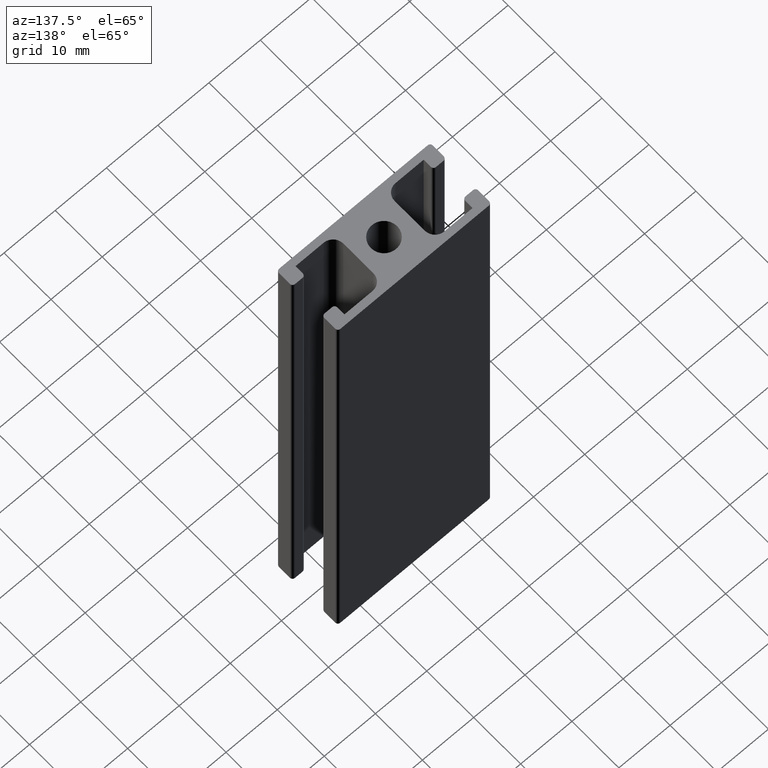
[diagram: clean part render]
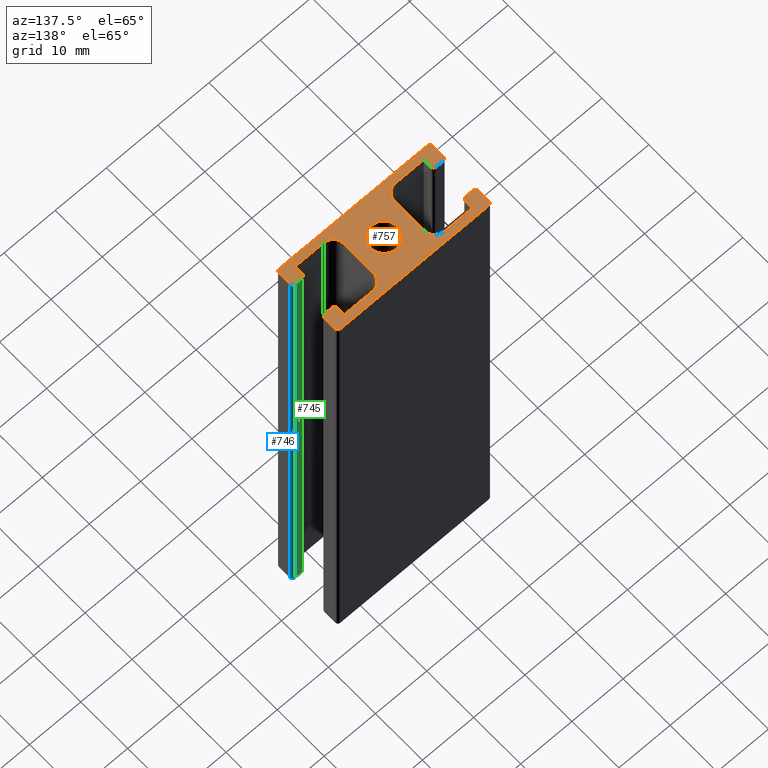
[diagram: same view with three faces highlighted in distinct colors, each labeled with its STEP entity id]
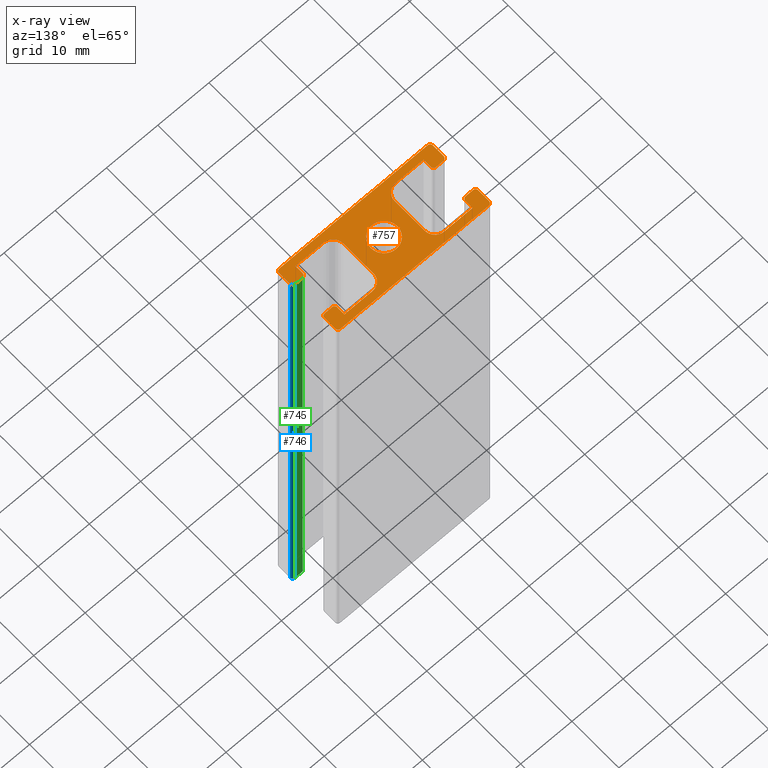
[diagram: x-ray of the same camera — body ghosted, the three highlighted faces saturated]
A machine part, auxiliary view with three faces highlighted in distinct colors.
The next image is the same camera in x-ray (body ghosted, the three faces saturated) — at least one of them is partly hidden behind the body in this view.
Their STEP definitions:

[orange] entity #757 — the highlighted planar face has unit normal (0, 0, 1).
#31=PLANE('',#824);
#39=LINE('',#1083,#115);
#43=LINE('',#1095,#119);
#46=LINE('',#1101,#122);
#50=LINE('',#1113,#126);
#56=LINE('',#1134,#132);
#60=LINE('',#1146,#136);
#63=LINE('',#1151,#139);
#65=LINE('',#1156,#141);
#69=LINE('',#1164,#145);
#73=LINE('',#1176,#149);
#79=LINE('',#1197,#155);
#83=LINE('',#1209,#159);
#86=LINE('',#1215,#162);
#90=LINE('',#1227,#166);
#95=LINE('',#1239,#171);
#96=LINE('',#1242,#172);
#99=LINE('',#1250,#175);
#100=LINE('',#1253,#176);
#101=LINE('',#1257,#177);
#102=LINE('',#1260,#178);
#115=VECTOR('',#860,6.400000000016);
#119=VECTOR('',#872,5.500000000008);
#122=VECTOR('',#877,1.55);
#126=VECTOR('',#889,1.5);
#132=VECTOR('',#909,1.5);
#136=VECTOR('',#921,1.55);
#139=VECTOR('',#926,5.500000000008);
#141=VECTOR('',#930,5.500000000008);
#145=VECTOR('',#936,1.55);
#149=VECTOR('',#948,1.5);
#155=VECTOR('',#968,1.5);
#159=VECTOR('',#980,1.55);
#162=VECTOR('',#985,5.500000000008);
#166=VECTOR('',#997,6.400000000016);
#171=VECTOR('',#1010,2.35000000000001);
#172=VECTOR('',#1013,2.35);
#175=VECTOR('',#1020,29.);
#176=VECTOR('',#1023,2.35000000000001);
#177=VECTOR('',#1026,29.);
#178=VECTOR('',#1029,2.34999999999999);
#190=FACE_BOUND('',#262,.T.);
#221=FACE_OUTER_BOUND('',#261,.T.);
#261=EDGE_LOOP('',(#605,#606,#607,#608,#609,#610,#611,#612,#613,#614,#615,
#616,#617,#618,#619,#620,#621,#622,#623,#624,#625,#626,#627,#628,#629,#630,
#631,#632,#633,#634,#635,#636,#637,#638,#639,#640));
#262=EDGE_LOOP('',(#641));
#273=CIRCLE('',#770,2.575);
#275=CIRCLE('',#773,1.999999999992);
#277=CIRCLE('',#777,1.999999999992);
#279=CIRCLE('',#782,0.5);
#281=CIRCLE('',#786,0.5);
#283=CIRCLE('',#789,0.499999999999998);
#285=CIRCLE('',#793,0.5);
#287=CIRCLE('',#800,0.5);
#289=CIRCLE('',#804,0.5);
#291=CIRCLE('',#807,0.5);
#293=CIRCLE('',#811,0.5);
#295=CIRCLE('',#816,1.999999999992);
#297=CIRCLE('',#820,1.999999999992);
#299=CIRCLE('',#825,0.499999999999994);
#300=CIRCLE('',#826,0.500000000000003);
#301=CIRCLE('',#827,0.500000000000003);
#302=CIRCLE('',#828,0.500000000000003);
#307=VERTEX_POINT('',#1068);
#309=VERTEX_POINT('',#1073);
#310=VERTEX_POINT('',#1074);
#313=VERTEX_POINT('',#1082);
#315=VERTEX_POINT('',#1088);
#317=VERTEX_POINT('',#1094);
#319=VERTEX_POINT('',#1100);
#321=VERTEX_POINT('',#1106);
#323=VERTEX_POINT('',#1112);
#325=VERTEX_POINT('',#1118);
#327=VERTEX_POINT('',#1124);
#328=VERTEX_POINT('',#1125);
#331=VERTEX_POINT('',#1133);
#333=VERTEX_POINT('',#1139);
#335=VERTEX_POINT('',#1145);
#337=VERTEX_POINT('',#1154);
#338=VERTEX_POINT('',#1155);
#341=VERTEX_POINT('',#1163);
#343=VERTEX_POINT('',#1169);
#345=VERTEX_POINT('',#1175);
#347=VERTEX_POINT('',#1181);
#349=VERTEX_POINT('',#1187);
#350=VERTEX_POINT('',#1188);
#353=VERTEX_POINT('',#1196);
#355=VERTEX_POINT('',#1202);
#357=VERTEX_POINT('',#1208);
#359=VERTEX_POINT('',#1214);
#361=VERTEX_POINT('',#1220);
#363=VERTEX_POINT('',#1226);
#366=VERTEX_POINT('',#1237);
#367=VERTEX_POINT('',#1241);
#369=VERTEX_POINT('',#1247);
#370=VERTEX_POINT('',#1249);
#371=VERTEX_POINT('',#1252);
#372=VERTEX_POINT('',#1254);
#373=VERTEX_POINT('',#1256);
#374=VERTEX_POINT('',#1258);
#381=EDGE_CURVE('',#307,#307,#273,.T.);
#383=EDGE_CURVE('',#309,#310,#275,.T.);
#387=EDGE_CURVE('',#310,#313,#39,.T.);
#390=EDGE_CURVE('',#313,#315,#277,.T.);
#393=EDGE_CURVE('',#315,#317,#43,.T.);
#396=EDGE_CURVE('',#317,#319,#46,.T.);
#399=EDGE_CURVE('',#319,#321,#279,.T.);
#402=EDGE_CURVE('',#321,#323,#50,.T.);
#405=EDGE_CURVE('',#323,#325,#281,.T.);
#408=EDGE_CURVE('',#327,#328,#283,.T.);
#412=EDGE_CURVE('',#328,#331,#56,.T.);
#415=EDGE_CURVE('',#331,#333,#285,.T.);
#418=EDGE_CURVE('',#333,#335,#60,.T.);
#421=EDGE_CURVE('',#335,#309,#63,.T.);
#423=EDGE_CURVE('',#337,#338,#65,.T.);
#427=EDGE_CURVE('',#341,#337,#69,.T.);
#430=EDGE_CURVE('',#343,#341,#287,.T.);
#433=EDGE_CURVE('',#345,#343,#73,.T.);
#436=EDGE_CURVE('',#347,#345,#289,.T.);
#439=EDGE_CURVE('',#349,#350,#291,.T.);
#443=EDGE_CURVE('',#353,#349,#79,.T.);
#446=EDGE_CURVE('',#355,#353,#293,.T.);
#449=EDGE_CURVE('',#357,#355,#83,.T.);
#452=EDGE_CURVE('',#359,#357,#86,.T.);
#455=EDGE_CURVE('',#361,#359,#295,.T.);
#458=EDGE_CURVE('',#363,#361,#90,.T.);
#461=EDGE_CURVE('',#338,#363,#297,.T.);
#465=EDGE_CURVE('',#366,#325,#95,.T.);
#466=EDGE_CURVE('',#347,#367,#96,.T.);
#469=EDGE_CURVE('',#369,#366,#299,.T.);
#470=EDGE_CURVE('',#370,#369,#99,.T.);
#471=EDGE_CURVE('',#367,#370,#300,.T.);
#472=EDGE_CURVE('',#371,#350,#100,.T.);
#473=EDGE_CURVE('',#372,#371,#301,.T.);
#474=EDGE_CURVE('',#373,#372,#101,.T.);
#475=EDGE_CURVE('',#374,#373,#302,.T.);
#476=EDGE_CURVE('',#327,#374,#102,.T.);
#605=ORIENTED_EDGE('',*,*,#408,.T.);
#606=ORIENTED_EDGE('',*,*,#412,.T.);
#607=ORIENTED_EDGE('',*,*,#415,.T.);
#608=ORIENTED_EDGE('',*,*,#418,.T.);
#609=ORIENTED_EDGE('',*,*,#421,.T.);
#610=ORIENTED_EDGE('',*,*,#383,.T.);
#611=ORIENTED_EDGE('',*,*,#387,.T.);
#612=ORIENTED_EDGE('',*,*,#390,.T.);
#613=ORIENTED_EDGE('',*,*,#393,.T.);
#614=ORIENTED_EDGE('',*,*,#396,.T.);
#615=ORIENTED_EDGE('',*,*,#399,.T.);
#616=ORIENTED_EDGE('',*,*,#402,.T.);
#617=ORIENTED_EDGE('',*,*,#405,.T.);
#618=ORIENTED_EDGE('',*,*,#465,.F.);
#619=ORIENTED_EDGE('',*,*,#469,.F.);
#620=ORIENTED_EDGE('',*,*,#470,.F.);
#621=ORIENTED_EDGE('',*,*,#471,.F.);
#622=ORIENTED_EDGE('',*,*,#466,.F.);
#623=ORIENTED_EDGE('',*,*,#436,.T.);
#624=ORIENTED_EDGE('',*,*,#433,.T.);
#625=ORIENTED_EDGE('',*,*,#430,.T.);
#626=ORIENTED_EDGE('',*,*,#427,.T.);
#627=ORIENTED_EDGE('',*,*,#423,.T.);
#628=ORIENTED_EDGE('',*,*,#461,.T.);
#629=ORIENTED_EDGE('',*,*,#458,.T.);
#630=ORIENTED_EDGE('',*,*,#455,.T.);
#631=ORIENTED_EDGE('',*,*,#452,.T.);
#632=ORIENTED_EDGE('',*,*,#449,.T.);
#633=ORIENTED_EDGE('',*,*,#446,.T.);
#634=ORIENTED_EDGE('',*,*,#443,.T.);
#635=ORIENTED_EDGE('',*,*,#439,.T.);
#636=ORIENTED_EDGE('',*,*,#472,.F.);
#637=ORIENTED_EDGE('',*,*,#473,.F.);
#638=ORIENTED_EDGE('',*,*,#474,.F.);
#639=ORIENTED_EDGE('',*,*,#475,.F.);
#640=ORIENTED_EDGE('',*,*,#476,.F.);
#641=ORIENTED_EDGE('',*,*,#381,.T.);
#757=ADVANCED_FACE('',(#221,#190),#31,.T.);
#770=AXIS2_PLACEMENT_3D('',#1069,#846,#847);
#773=AXIS2_PLACEMENT_3D('',#1075,#852,#853);
#777=AXIS2_PLACEMENT_3D('',#1089,#865,#866);
#782=AXIS2_PLACEMENT_3D('',#1107,#882,#883);
#786=AXIS2_PLACEMENT_3D('',#1119,#894,#895);
#789=AXIS2_PLACEMENT_3D('',#1126,#901,#902);
#793=AXIS2_PLACEMENT_3D('',#1140,#914,#915);
#800=AXIS2_PLACEMENT_3D('',#1170,#941,#942);
#804=AXIS2_PLACEMENT_3D('',#1182,#953,#954);
#807=AXIS2_PLACEMENT_3D('',#1189,#960,#961);
#811=AXIS2_PLACEMENT_3D('',#1203,#973,#974);
#816=AXIS2_PLACEMENT_3D('',#1221,#990,#991);
#820=AXIS2_PLACEMENT_3D('',#1232,#1002,#1003);
#824=AXIS2_PLACEMENT_3D('',#1246,#1016,#1017);
#825=AXIS2_PLACEMENT_3D('',#1248,#1018,#1019);
#826=AXIS2_PLACEMENT_3D('',#1251,#1021,#1022);
#827=AXIS2_PLACEMENT_3D('',#1255,#1024,#1025);
#828=AXIS2_PLACEMENT_3D('',#1259,#1027,#1028);
#846=DIRECTION('center_axis',(0.,0.,-1.));
#847=DIRECTION('ref_axis',(-1.,0.,0.));
#852=DIRECTION('center_axis',(0.,0.,-1.));
#853=DIRECTION('ref_axis',(1.,-5.55111512314799E-16,0.));
#860=DIRECTION('',(-4.33680868993118E-16,-1.,0.));
#865=DIRECTION('center_axis',(0.,0.,-1.));
#866=DIRECTION('ref_axis',(-5.55111512314799E-16,-1.,0.));
#872=DIRECTION('',(-1.,2.01858731749735E-16,0.));
#877=DIRECTION('',(1.43254583822601E-15,1.,0.));
#882=DIRECTION('center_axis',(0.,0.,1.));
#883=DIRECTION('ref_axis',(-1.,-1.11022302462516E-15,0.));
#889=DIRECTION('',(-1.,3.70074341541719E-16,0.));
#894=DIRECTION('center_axis',(0.,0.,1.));
#895=DIRECTION('ref_axis',(0.,-1.,0.));
#901=DIRECTION('center_axis',(0.,0.,1.));
#902=DIRECTION('ref_axis',(1.,-1.88737914186274E-14,0.));
#909=DIRECTION('',(1.,0.,0.));
#914=DIRECTION('center_axis',(0.,0.,1.));
#915=DIRECTION('ref_axis',(0.,1.,0.));
#921=DIRECTION('',(0.,1.,0.));
#926=DIRECTION('',(1.,-2.01858731749735E-16,0.));
#930=DIRECTION('',(-1.,6.05576195249205E-16,0.));
#936=DIRECTION('',(-1.43254583822601E-15,-1.,0.));
#941=DIRECTION('center_axis',(0.,0.,1.));
#942=DIRECTION('ref_axis',(0.,-1.,0.));
#948=DIRECTION('',(-1.,3.70074341541719E-16,0.));
#953=DIRECTION('center_axis',(0.,0.,1.));
#954=DIRECTION('ref_axis',(-1.,-4.4408920985006E-15,0.));
#960=DIRECTION('center_axis',(0.,0.,1.));
#961=DIRECTION('ref_axis',(0.,1.,0.));
#968=DIRECTION('',(1.,-7.40148683083437E-16,0.));
#973=DIRECTION('center_axis',(0.,0.,1.));
#974=DIRECTION('ref_axis',(1.,0.,0.));
#980=DIRECTION('',(-1.43254583822601E-15,-1.,0.));
#985=DIRECTION('',(1.,-6.05576195249204E-16,0.));
#990=DIRECTION('center_axis',(0.,0.,-1.));
#991=DIRECTION('ref_axis',(0.,1.,0.));
#997=DIRECTION('',(0.,1.,0.));
#1002=DIRECTION('center_axis',(0.,0.,-1.));
#1003=DIRECTION('ref_axis',(-1.,-2.77555756157399E-16,0.));
#1010=DIRECTION('',(0.,1.,0.));
#1013=DIRECTION('',(0.,-1.,0.));
#1016=DIRECTION('center_axis',(0.,0.,1.));
#1017=DIRECTION('ref_axis',(1.,0.,0.));
#1018=DIRECTION('center_axis',(0.,0.,-1.));
#1019=DIRECTION('ref_axis',(-1.,2.22044604925032E-15,0.));
#1020=DIRECTION('',(-1.,0.,0.));
#1021=DIRECTION('center_axis',(0.,0.,-1.));
#1022=DIRECTION('ref_axis',(0.,-1.,0.));
#1023=DIRECTION('',(0.,-1.,0.));
#1024=DIRECTION('center_axis',(0.,0.,-1.));
#1025=DIRECTION('ref_axis',(1.,-2.22044604925032E-15,0.));
#1026=DIRECTION('',(1.,0.,0.));
#1027=DIRECTION('center_axis',(0.,0.,-1.));
#1028=DIRECTION('ref_axis',(0.,1.,0.));
#1029=DIRECTION('',(0.,1.,0.));
#1068=CARTESIAN_POINT('',(2.575,-3.15346550780443E-16,100.));
#1069=CARTESIAN_POINT('Origin',(0.,0.,100.));
#1073=CARTESIAN_POINT('',(-6.999999999992,5.2,100.));
#1074=CARTESIAN_POINT('',(-5.,3.200000000008,100.));
#1075=CARTESIAN_POINT('Origin',(-6.999999999992,3.200000000008,100.));
#1082=CARTESIAN_POINT('',(-5.,-3.200000000008,100.));
#1083=CARTESIAN_POINT('',(-5.,1.600000000004,100.));
#1088=CARTESIAN_POINT('',(-6.999999999992,-5.2,100.));
#1089=CARTESIAN_POINT('Origin',(-6.999999999992,-3.200000000008,100.));
#1094=CARTESIAN_POINT('',(-12.5,-5.2,100.));
#1095=CARTESIAN_POINT('',(-3.499999999996,-5.2,100.));
#1100=CARTESIAN_POINT('',(-12.5,-3.65,100.));
#1101=CARTESIAN_POINT('',(-12.5,-2.59999999999999,100.));
#1106=CARTESIAN_POINT('',(-13.,-3.15,100.));
#1107=CARTESIAN_POINT('Origin',(-13.,-3.65,100.));
#1112=CARTESIAN_POINT('',(-14.5,-3.15,100.));
#1113=CARTESIAN_POINT('',(-6.5,-3.15,100.));
#1118=CARTESIAN_POINT('',(-15.,-3.64999999999999,100.));
#1119=CARTESIAN_POINT('Origin',(-14.5,-3.65,100.));
#1124=CARTESIAN_POINT('',(-15.,3.65000000000001,100.));
#1125=CARTESIAN_POINT('',(-14.5,3.15,100.));
#1126=CARTESIAN_POINT('Origin',(-14.5,3.65,100.));
#1133=CARTESIAN_POINT('',(-13.,3.15,100.));
#1134=CARTESIAN_POINT('',(-7.25,3.15,100.));
#1139=CARTESIAN_POINT('',(-12.5,3.65,100.));
#1140=CARTESIAN_POINT('Origin',(-13.,3.65,100.));
#1145=CARTESIAN_POINT('',(-12.5,5.2,100.));
#1146=CARTESIAN_POINT('',(-12.5,1.825,100.));
#1151=CARTESIAN_POINT('',(-6.25,5.2,100.));
#1154=CARTESIAN_POINT('',(12.5,-5.2,100.));
#1155=CARTESIAN_POINT('',(6.999999999992,-5.2,100.));
#1156=CARTESIAN_POINT('',(6.25,-5.2,100.));
#1163=CARTESIAN_POINT('',(12.5,-3.65,100.));
#1164=CARTESIAN_POINT('',(12.5,-1.82500000000001,100.));
#1169=CARTESIAN_POINT('',(13.,-3.15,100.));
#1170=CARTESIAN_POINT('Origin',(13.,-3.65,100.));
#1175=CARTESIAN_POINT('',(14.5,-3.15,100.));
#1176=CARTESIAN_POINT('',(7.25,-3.15,100.));
#1181=CARTESIAN_POINT('',(15.,-3.65,100.));
#1182=CARTESIAN_POINT('Origin',(14.5,-3.65,100.));
#1187=CARTESIAN_POINT('',(14.5,3.15,100.));
#1188=CARTESIAN_POINT('',(15.,3.64999999999999,100.));
#1189=CARTESIAN_POINT('Origin',(14.5,3.65,100.));
#1196=CARTESIAN_POINT('',(13.,3.15,100.));
#1197=CARTESIAN_POINT('',(6.5,3.15,100.));
#1202=CARTESIAN_POINT('',(12.5,3.65,100.));
#1203=CARTESIAN_POINT('Origin',(13.,3.65,100.));
#1208=CARTESIAN_POINT('',(12.5,5.2,100.));
#1209=CARTESIAN_POINT('',(12.5,2.59999999999999,100.));
#1214=CARTESIAN_POINT('',(6.999999999992,5.2,100.));
#1215=CARTESIAN_POINT('',(3.499999999996,5.2,100.));
#1220=CARTESIAN_POINT('',(5.,3.200000000008,100.));
#1221=CARTESIAN_POINT('Origin',(6.999999999992,3.200000000008,100.));
#1226=CARTESIAN_POINT('',(5.,-3.200000000008,100.));
#1227=CARTESIAN_POINT('',(5.,-1.600000000004,100.));
#1232=CARTESIAN_POINT('Origin',(6.999999999992,-3.200000000008,100.));
#1237=CARTESIAN_POINT('',(-15.,-6.,100.));
#1239=CARTESIAN_POINT('',(-15.,3.,100.));
#1241=CARTESIAN_POINT('',(15.,-6.,100.));
#1242=CARTESIAN_POINT('',(15.,-3.,100.));
#1246=CARTESIAN_POINT('Origin',(0.,0.,100.));
#1247=CARTESIAN_POINT('',(-14.5,-6.5,100.));
#1248=CARTESIAN_POINT('Origin',(-14.5,-6.,100.));
#1249=CARTESIAN_POINT('',(14.5,-6.5,100.));
#1250=CARTESIAN_POINT('',(-7.25,-6.5,100.));
#1251=CARTESIAN_POINT('Origin',(14.5,-6.,100.));
#1252=CARTESIAN_POINT('',(15.,6.,100.));
#1253=CARTESIAN_POINT('',(15.,-3.,100.));
#1254=CARTESIAN_POINT('',(14.5,6.5,100.));
#1255=CARTESIAN_POINT('Origin',(14.5,6.,100.));
#1256=CARTESIAN_POINT('',(-14.5,6.5,100.));
#1257=CARTESIAN_POINT('',(7.25,6.5,100.));
#1258=CARTESIAN_POINT('',(-15.,6.,100.));
#1259=CARTESIAN_POINT('Origin',(-14.5,6.,100.));
#1260=CARTESIAN_POINT('',(-15.,3.,100.));

[blue] entity #746 — the highlighted cylindrical surface (edge-blend (fillet) strip) has radius 0.5 mm, axis along (0, 0, 1).
#74=LINE('',#1178,#150);
#76=LINE('',#1184,#152);
#150=VECTOR('',#949,100.);
#152=VECTOR('',#955,100.);
#210=FACE_OUTER_BOUND('',#250,.T.);
#250=EDGE_LOOP('',(#561,#562,#563,#564));
#289=CIRCLE('',#804,0.5);
#290=CIRCLE('',#805,0.5);
#345=VERTEX_POINT('',#1175);
#346=VERTEX_POINT('',#1177);
#347=VERTEX_POINT('',#1181);
#348=VERTEX_POINT('',#1183);
#434=EDGE_CURVE('',#346,#345,#74,.T.);
#436=EDGE_CURVE('',#347,#345,#289,.T.);
#437=EDGE_CURVE('',#347,#348,#76,.T.);
#438=EDGE_CURVE('',#346,#348,#290,.T.);
#561=ORIENTED_EDGE('',*,*,#436,.F.);
#562=ORIENTED_EDGE('',*,*,#437,.T.);
#563=ORIENTED_EDGE('',*,*,#438,.F.);
#564=ORIENTED_EDGE('',*,*,#434,.T.);
#719=CYLINDRICAL_SURFACE('',#803,0.5);
#746=ADVANCED_FACE('',(#210),#719,.T.);
#803=AXIS2_PLACEMENT_3D('',#1180,#951,#952);
#804=AXIS2_PLACEMENT_3D('',#1182,#953,#954);
#805=AXIS2_PLACEMENT_3D('',#1185,#956,#957);
#949=DIRECTION('',(0.,0.,1.));
#951=DIRECTION('center_axis',(0.,0.,1.));
#952=DIRECTION('ref_axis',(-1.,-4.4408920985006E-15,0.));
#953=DIRECTION('center_axis',(0.,0.,1.));
#954=DIRECTION('ref_axis',(-1.,-4.4408920985006E-15,0.));
#955=DIRECTION('',(0.,0.,-1.));
#956=DIRECTION('center_axis',(0.,0.,-1.));
#957=DIRECTION('ref_axis',(-1.,-4.4408920985006E-15,0.));
#1175=CARTESIAN_POINT('',(14.5,-3.15,100.));
#1177=CARTESIAN_POINT('',(14.5,-3.15,0.));
#1178=CARTESIAN_POINT('',(14.5,-3.15,0.));
#1180=CARTESIAN_POINT('Origin',(14.5,-3.65,0.));
#1181=CARTESIAN_POINT('',(15.,-3.65,100.));
#1182=CARTESIAN_POINT('Origin',(14.5,-3.65,100.));
#1183=CARTESIAN_POINT('',(15.,-3.65,0.));
#1184=CARTESIAN_POINT('',(15.,-3.65,0.));
#1185=CARTESIAN_POINT('Origin',(14.5,-3.65,0.));

[green] entity #745 — the highlighted planar face has unit normal (-0, -1, 0).
#24=PLANE('',#802);
#72=LINE('',#1172,#148);
#73=LINE('',#1176,#149);
#74=LINE('',#1178,#150);
#75=LINE('',#1179,#151);
#148=VECTOR('',#943,100.);
#149=VECTOR('',#948,1.5);
#150=VECTOR('',#949,100.);
#151=VECTOR('',#950,1.5);
#209=FACE_OUTER_BOUND('',#249,.T.);
#249=EDGE_LOOP('',(#557,#558,#559,#560));
#343=VERTEX_POINT('',#1169);
#344=VERTEX_POINT('',#1171);
#345=VERTEX_POINT('',#1175);
#346=VERTEX_POINT('',#1177);
#431=EDGE_CURVE('',#344,#343,#72,.T.);
#433=EDGE_CURVE('',#345,#343,#73,.T.);
#434=EDGE_CURVE('',#346,#345,#74,.T.);
#435=EDGE_CURVE('',#344,#346,#75,.T.);
#557=ORIENTED_EDGE('',*,*,#433,.F.);
#558=ORIENTED_EDGE('',*,*,#434,.F.);
#559=ORIENTED_EDGE('',*,*,#435,.F.);
#560=ORIENTED_EDGE('',*,*,#431,.T.);
#745=ADVANCED_FACE('',(#209),#24,.F.);
#802=AXIS2_PLACEMENT_3D('',#1174,#946,#947);
#943=DIRECTION('',(0.,0.,1.));
#946=DIRECTION('center_axis',(-3.70074341541719E-16,-1.,0.));
#947=DIRECTION('ref_axis',(0.,0.,-1.));
#948=DIRECTION('',(-1.,3.70074341541719E-16,0.));
#949=DIRECTION('',(0.,0.,1.));
#950=DIRECTION('',(1.,-3.70074341541719E-16,0.));
#1169=CARTESIAN_POINT('',(13.,-3.15,100.));
#1171=CARTESIAN_POINT('',(13.,-3.15,0.));
#1172=CARTESIAN_POINT('',(13.,-3.15,0.));
#1174=CARTESIAN_POINT('Origin',(14.5,-3.15,0.));
#1175=CARTESIAN_POINT('',(14.5,-3.15,100.));
#1176=CARTESIAN_POINT('',(7.25,-3.15,100.));
#1177=CARTESIAN_POINT('',(14.5,-3.15,0.));
#1178=CARTESIAN_POINT('',(14.5,-3.15,0.));
#1179=CARTESIAN_POINT('',(7.25,-3.15,0.));